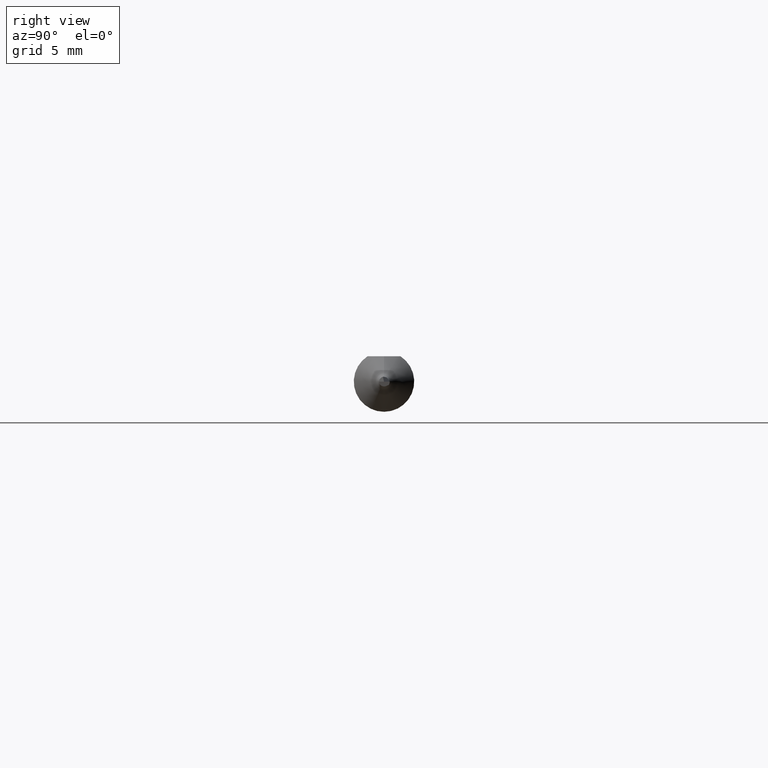
[diagram: clean part render]
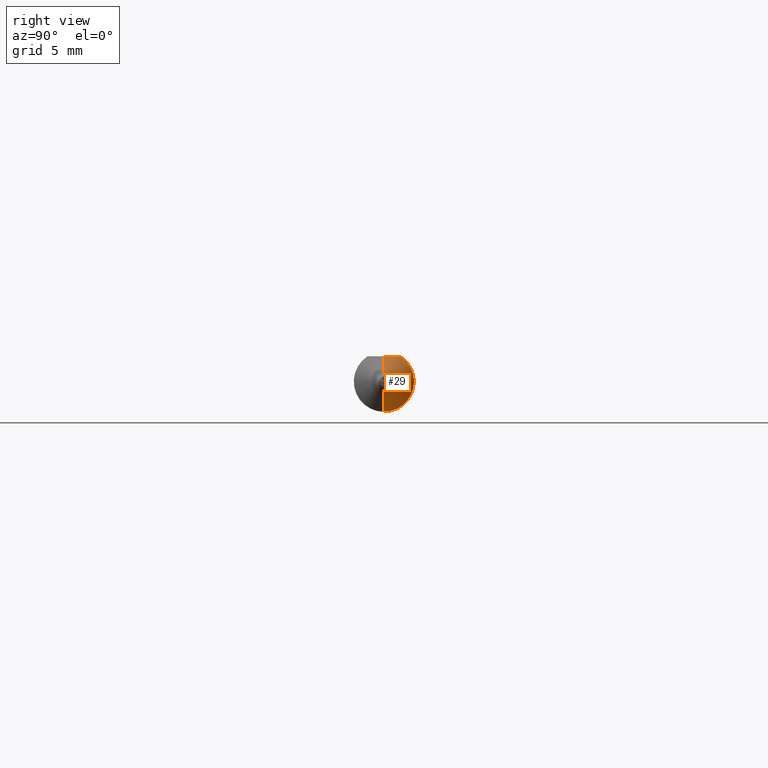
[diagram: same view with one face highlighted and labeled with its STEP entity id]
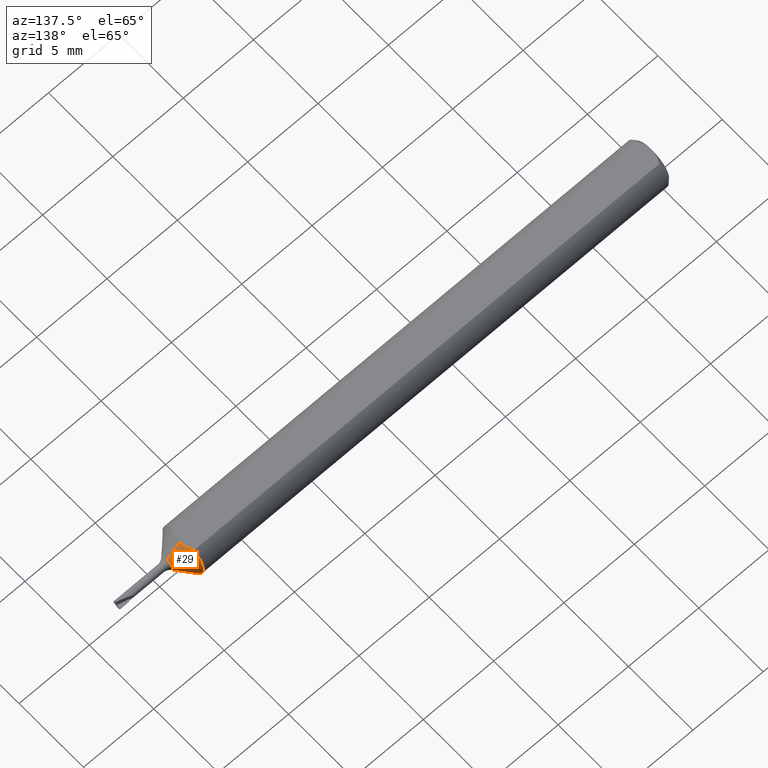
[diagram: same view with one face highlighted and labeled with its STEP entity id]
A machine part, right view. The second image highlights one B-rep face of the part: STEP entity #29.
A second angle (auxiliary view) of the same face is appended — the face is thin or edge-on in the first view.
In plain terms, the highlighted conical surface has half-angle 45 deg.
Its self-contained STEP definition (entity closure, byte-faithful):
#2 = CARTESIAN_POINT ( 'NONE',  ( 1.315496486667928844, 0.02862699489997218988, 0.05235000000000001458 ) ) ;
#12 = VERTEX_POINT ( 'NONE', #434 ) ;
#15 = DIRECTION ( 'NONE',  ( -1.000000000000000000, -0.000000000000000000, -0.000000000000000000 ) ) ;
#29 = ADVANCED_FACE ( 'NONE', ( #176 ), #53, .T. ) ;
#34 = LINE ( 'NONE', #139, #485 ) ;
#40 = DIRECTION ( 'NONE',  ( -1.000000000000000000, -0.000000000000000000, -0.000000000000000000 ) ) ;
#43 = AXIS2_PLACEMENT_3D ( 'NONE', #66, #433, #115 ) ;
#53 = CONICAL_SURFACE ( 'NONE', #570, 0.01732233047033639867, 0.7853981633974508325 ) ;
#54 = EDGE_CURVE ( 'NONE', #410, #135, #683, .T. ) ;
#66 = CARTESIAN_POINT ( 'NONE',  ( 1.357677669529663733, 0.000000000000000000, 0.000000000000000000 ) ) ;
#70 = AXIS2_PLACEMENT_3D ( 'NONE', #140, #40, #530 ) ;
#82 = DIRECTION ( 'NONE',  ( -0.7071067811865457964, 0.000000000000000000, 0.7071067811865493491 ) ) ;
#94 = ORIENTED_EDGE ( 'NONE', *, *, #495, .T. ) ;
#115 = DIRECTION ( 'NONE',  ( 0.000000000000000000, 0.000000000000000000, 1.000000000000000000 ) ) ;
#131 = CIRCLE ( 'NONE', #43, 0.01732233047033639867 ) ;
#135 = VERTEX_POINT ( 'NONE', #225 ) ;
#139 = CARTESIAN_POINT ( 'NONE',  ( 1.357677669529663733, 0.000000000000000000, 0.01732233047033639867 ) ) ;
#140 = CARTESIAN_POINT ( 'NONE',  ( 1.312650000000000317, 0.000000000000000000, 0.000000000000000000 ) ) ;
#156 = CIRCLE ( 'NONE', #70, 0.06235000000000000264 ) ;
#171 = CARTESIAN_POINT ( 'NONE',  ( 1.321578966334656879, 0.01191455685703347520, 0.05235000000000001458 ) ) ;
#176 = FACE_OUTER_BOUND ( 'NONE', #349, .T. ) ;
#196 = CARTESIAN_POINT ( 'NONE',  ( 1.312650000000000317, 0.03386738844375220686, 0.05235000000000000070 ) ) ;
#225 = CARTESIAN_POINT ( 'NONE',  ( 1.322650000000000103, 8.761334592606603512E-20, 0.05235000000000001458 ) ) ;
#228 = ORIENTED_EDGE ( 'NONE', *, *, #54, .T. ) ;
#283 = VERTEX_POINT ( 'NONE', #620 ) ;
#323 = EDGE_CURVE ( 'NONE', #410, #283, #156, .T. ) ;
#329 = DIRECTION ( 'NONE',  ( 0.000000000000000000, 0.000000000000000000, 1.000000000000000000 ) ) ;
#334 = CARTESIAN_POINT ( 'NONE',  ( 1.317986180560402731, 0.02321045958865959949, 0.05235000000000003539 ) ) ;
#343 = VERTEX_POINT ( 'NONE', #363 ) ;
#349 = EDGE_LOOP ( 'NONE', ( #94, #418, #464, #228, #623 ) ) ;
#363 = CARTESIAN_POINT ( 'NONE',  ( 1.357677669529663733, 2.121373656427011777E-18, -0.01732233047033638826 ) ) ;
#383 = LINE ( 'NONE', #424, #662 ) ;
#410 = VERTEX_POINT ( 'NONE', #196 ) ;
#418 = ORIENTED_EDGE ( 'NONE', *, *, #548, .T. ) ;
#424 = CARTESIAN_POINT ( 'NONE',  ( 1.357677669529663733, 2.121373656427013318E-18, -0.01732233047033639867 ) ) ;
#433 = DIRECTION ( 'NONE',  ( -1.000000000000000000, -0.000000000000000000, -0.000000000000000000 ) ) ;
#434 = CARTESIAN_POINT ( 'NONE',  ( 1.357677669529663733, 0.000000000000000000, 0.01732233047033638826 ) ) ;
#443 = CARTESIAN_POINT ( 'NONE',  ( 1.322650000000000547, 0.005921610525265143775, 0.05235000000000002152 ) ) ;
#464 = ORIENTED_EDGE ( 'NONE', *, *, #323, .F. ) ;
#485 = VECTOR ( 'NONE', #82, 39.37007874015748143 ) ;
#486 = CARTESIAN_POINT ( 'NONE',  ( 1.322650000000000103, 8.761334592606603512E-20, 0.05235000000000001458 ) ) ;
#495 = EDGE_CURVE ( 'NONE', #12, #343, #131, .T. ) ;
#530 = DIRECTION ( 'NONE',  ( 0.000000000000000000, 0.000000000000000000, 1.000000000000000000 ) ) ;
#548 = EDGE_CURVE ( 'NONE', #343, #283, #383, .T. ) ;
#552 = CARTESIAN_POINT ( 'NONE',  ( 1.357677669529663733, 0.000000000000000000, 0.000000000000000000 ) ) ;
#570 = AXIS2_PLACEMENT_3D ( 'NONE', #552, #15, #329 ) ;
#608 = CARTESIAN_POINT ( 'NONE',  ( 1.312650000000000317, 0.03386738844375220686, 0.05235000000000000070 ) ) ;
#620 = CARTESIAN_POINT ( 'NONE',  ( 1.312650000000000317, 7.635672792683746671E-18, -0.06234999999999999570 ) ) ;
#623 = ORIENTED_EDGE ( 'NONE', *, *, #628, .F. ) ;
#628 = EDGE_CURVE ( 'NONE', #12, #135, #34, .T. ) ;
#646 = DIRECTION ( 'NONE',  ( -0.7071067811865457964, 8.659560562354955045E-17, -0.7071067811865493491 ) ) ;
#662 = VECTOR ( 'NONE', #646, 39.37007874015748143 ) ;
#683 = B_SPLINE_CURVE_WITH_KNOTS ( 'NONE', 3,
 ( #608, #2, #334, #171, #443, #486 ),
 .UNSPECIFIED., .F., .F.,
 ( 4, 2, 4 ),
 ( 0.002169908765734830484, 0.002618980358206603187, 0.003068051950678375456 ),
 .UNSPECIFIED. ) ;